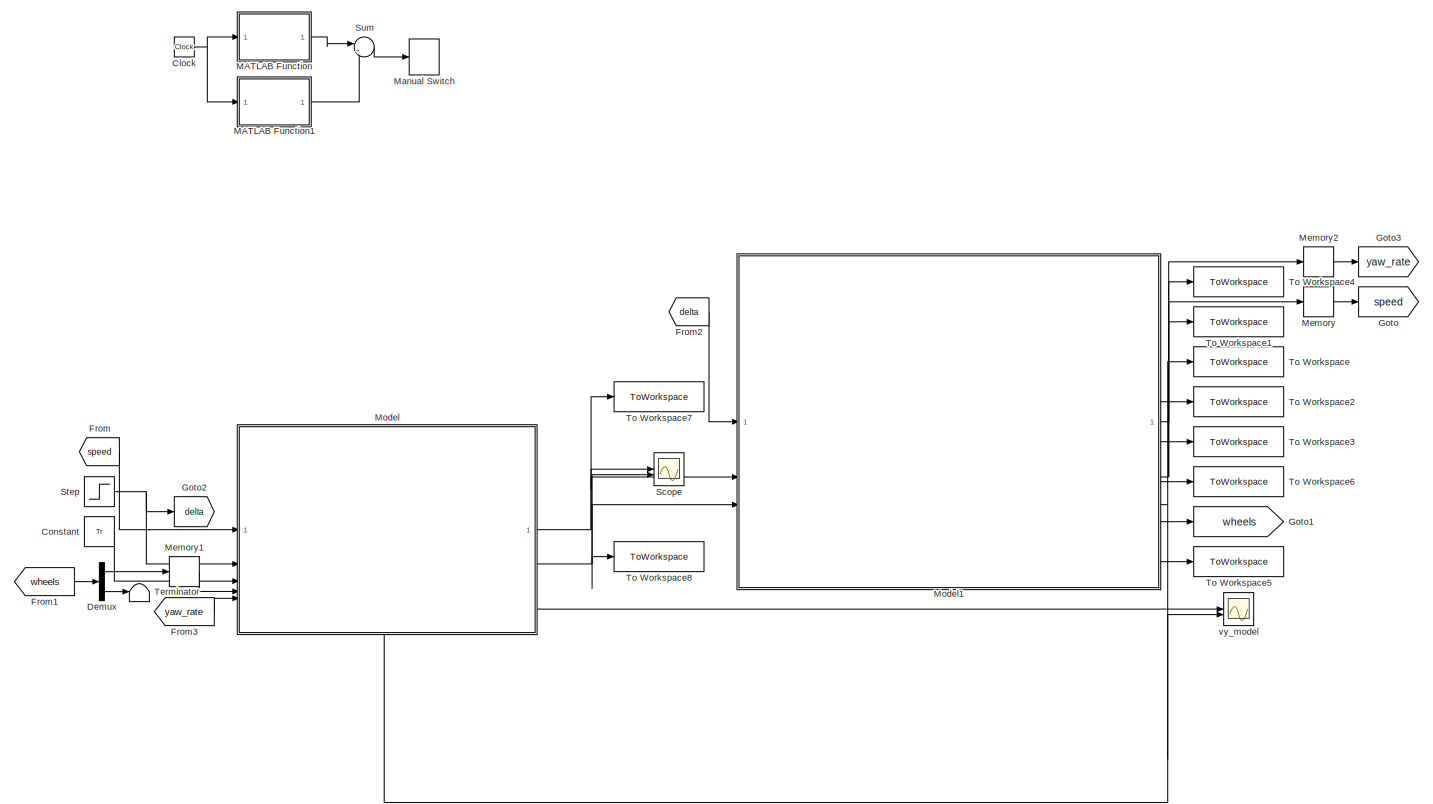
[diagram: root canvas - part 1/1, most of the canvas]
MODEL slx_322e5570ceea
KIND model
CONFIG AbsTol = auto
CONFIG EnableMultiTasking = off
CONFIG FixedStep = Ts
CONFIG MaxStep = auto
CONFIG MinStep = auto
CONFIG RelTol = 1e-3
CONFIG SampleTimeConstraint = Unconstrained
CONFIG SolverName = FixedStepAuto
CONFIG StartTime = 0.0
CONFIG StopTime = Tsim
BLOCK [Clock] Clock
  Commented = on
BLOCK [Constant] Constant
  Value = Tr
BLOCK [Demux] Demux
  Outputs = 2
BLOCK [From] From
  GotoTag = speed
BLOCK [From] From1
  GotoTag = wheels
BLOCK [From] From2
  GotoTag = delta
BLOCK [From] From3
  GotoTag = yaw_rate
BLOCK [Goto] Goto
  GotoTag = speed
BLOCK [Goto] Goto1
  GotoTag = wheels
BLOCK [Goto] Goto2
  GotoTag = delta
BLOCK [Goto] Goto3
  GotoTag = yaw_rate
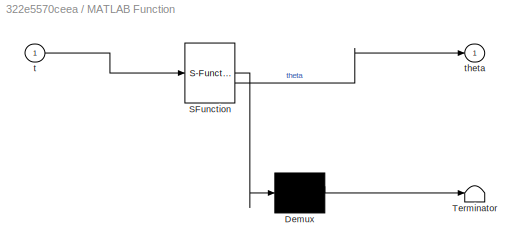
BLOCK [SubSystem] MATLAB Function
  Commented = on
  ErrorFcn = Stateflow.Translate.translate
  PermitHierarchicalResolution = ExplicitOnly
  SFBlockType = MATLAB Function
  TreatAsAtomicUnit = on
BLOCK [Demux] MATLAB Function/ Demux 
  Outputs = 1
BLOCK [S-Function] MATLAB Function/ SFunction 
  EnableBusSupport = on
  FunctionName = sf_sfun
  PortCounts = [1 2]
  SFcnIsStateOwnerBlock = off
  SFunctionDeploymentMode = off
  Tag = Stateflow S-Function 2
BLOCK [Terminator] MATLAB Function/ Terminator 
BLOCK [Inport] MATLAB Function/t
BLOCK [Outport] MATLAB Function/theta
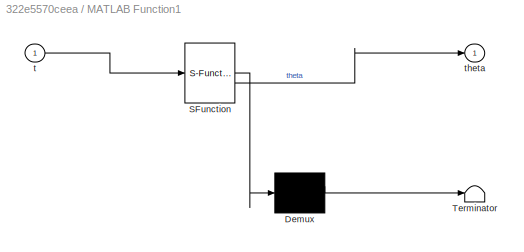
BLOCK [SubSystem] MATLAB Function1
  Commented = on
  ErrorFcn = Stateflow.Translate.translate
  PermitHierarchicalResolution = ExplicitOnly
  SFBlockType = MATLAB Function
  TreatAsAtomicUnit = on
BLOCK [Demux] MATLAB Function1/ Demux 
  Outputs = 1
BLOCK [S-Function] MATLAB Function1/ SFunction 
  EnableBusSupport = on
  FunctionName = sf_sfun
  PortCounts = [1 2]
  SFcnIsStateOwnerBlock = off
  SFunctionDeploymentMode = off
  Tag = Stateflow S-Function 1
BLOCK [Terminator] MATLAB Function1/ Terminator 
BLOCK [Inport] MATLAB Function1/t
BLOCK [Outport] MATLAB Function1/theta
BLOCK [ManualSwitch] Manual Switch
  Commented = on
  CurrentSetting = 0
BLOCK [Memory] Memory
  InitialCondition = v0
BLOCK [Memory] Memory1
  InitialCondition = [v0/Re v0/Re]
BLOCK [Memory] Memory2
BLOCK [ModelReference] Model
  ModelNameDialog = main_commande.slx
  ModelReferenceVersion = 1.45
  PortSchema = {"entries":[{"content":{"sides":[{"content":{"connectorIds":["In1","In2","In3","In4","In5"]},"type":"ConnectorPlacement.EquallySpacedRectSide","uuid":"422f371f-fcb3-40d1-9c6b-2b45da2fc934"},{"content":{"connectorIds":["Out1","Out2","Out3"],"side":"RIGHT"},"type":"ConnectorPlacement.EquallySpacedRectSide","uuid":"5fd8a801-8d83-4f2f-88b4-f69183b19fb5"},{"content":{"side":"TOP"},"type":"ConnectorPlac...<+409ch>
BLOCK [ModelReference] Model1
  ModelNameDialog = main.slx
  ModelReferenceVersion = 1.137
BLOCK [Scope] Scope
  Floating = off
  NumInputPorts = 2
  ScopeSpecificationString = Simulink.scopes.TimeScopeBlockCfg('CurrentConfiguration', extmgr.ConfigurationSet(extmgr.Configuration('Core','General UI',true),extmgr.Configuration('Core','Source UI',true),extmgr.Configuration('Sources','WiredSimulink',true),extmgr.Configuration('Visuals','Time Domain',true,'SerializedDisplays',{struct('MinYLimReal','-402.50082','MaxYLimReal','402.50082','YLabelReal','','MinYLimMag',' 0.00000',...<+1539ch>
BLOCK [Step] Step
  After = deltaF
  Before = delta0
  SampleTime = 0
  Time = t_sw
BLOCK [Sum] Sum
  Commented = on
  Inputs = |++
BLOCK [Terminator] Terminator
BLOCK [ToWorkspace] To Workspace
  FixptAsFi = on
  MaxDataPoints = inf
  NameLocation = top
  SampleTime = -1
  SaveFormat = Structure With Time
  VariableName = v_y
BLOCK [ToWorkspace] To Workspace1
  FixptAsFi = on
  MaxDataPoints = inf
  NameLocation = top
  SampleTime = -1
  SaveFormat = Structure With Time
  VariableName = v_x
BLOCK [ToWorkspace] To Workspace2
  FixptAsFi = on
  MaxDataPoints = inf
  NameLocation = top
  SampleTime = -1
  SaveFormat = Structure With Time
  VariableName = y
BLOCK [ToWorkspace] To Workspace3
  FixptAsFi = on
  MaxDataPoints = inf
  NameLocation = top
  SampleTime = -1
  SaveFormat = Structure With Time
  VariableName = x
BLOCK [ToWorkspace] To Workspace4
  FixptAsFi = on
  MaxDataPoints = inf
  NameLocation = top
  SampleTime = -1
  SaveFormat = Structure With Time
  VariableName = phi_dot
BLOCK [ToWorkspace] To Workspace5
  FixptAsFi = on
  MaxDataPoints = inf
  NameLocation = top
  SampleTime = -1
  SaveFormat = Structure With Time
  VariableName = phi
BLOCK [ToWorkspace] To Workspace6
  FixptAsFi = on
  MaxDataPoints = inf
  NameLocation = top
  SampleTime = -1
  SaveFormat = Structure With Time
  VariableName = beta
BLOCK [ToWorkspace] To Workspace7
  FixptAsFi = on
  MaxDataPoints = inf
  NameLocation = top
  SampleTime = -1
  SaveFormat = Structure With Time
  VariableName = T_RL
BLOCK [ToWorkspace] To Workspace8
  FixptAsFi = on
  MaxDataPoints = inf
  NameLocation = top
  SampleTime = -1
  SaveFormat = Structure With Time
  VariableName = T_RR
BLOCK [Scope] vy_model
  Floating = off
  NumInputPorts = 2
  ScopeSpecificationString = Simulink.scopes.TimeScopeBlockCfg('CurrentConfiguration', extmgr.ConfigurationSet(extmgr.Configuration('Core','General UI',true),extmgr.Configuration('Core','Source UI',true),extmgr.Configuration('Sources','WiredSimulink',true,'DataLoggingVariableName','ScopeData1'),extmgr.Configuration('Visuals','Time Domain',true,'SerializedDisplays',{struct('MinYLimReal','-1.16335','MaxYLimReal','10.43874','YLa...<+1540ch>
NET Clock:1 -> MATLAB Function1:1, MATLAB Function:1
LINE Constant:1 -> Model:3
LINE Demux:1 -> Memory1:1
LINE Demux:2 -> Terminator:1
LINE From1:1 -> Demux:1
LINE From2:1 -> Model1:1
LINE From3:1 -> Model:5
LINE From:1 -> Model:1
LINE MATLAB Function1:1 -> Sum:2
LINE MATLAB Function:1 -> Sum:1
LINE Memory1:1 -> Model:4
LINE Memory2:1 -> Goto3:1
LINE Memory:1 -> Goto:1
NET Model1:1 -> Memory2:1, To Workspace4:1
NET Model1:2 -> Memory:1, To Workspace1:1
NET Model1:3 -> Model:6, To Workspace:1, vy_model:2
LINE Model1:4 -> To Workspace2:1
LINE Model1:5 -> To Workspace3:1
LINE Model1:6 -> To Workspace6:1
LINE Model1:7 -> Goto1:1
LINE Model1:8 -> To Workspace5:1
NET Model:1 -> Model1:2, Scope:1, To Workspace7:1
NET Model:2 -> Model1:3, Scope:2, To Workspace8:1
LINE Model:3 -> vy_model:1
NET Step:1 -> Goto2:1, Model:2
LINE Sum:1 -> Manual Switch:1
note: NET lines group one-source signal fan-out (src -> all destinations, sorted); 1:1 wires keep LINE
CHART MATLAB Function states=1 transitions=1
  STATE_LABEL 'eML_blk_kernel()'
  STATE_LABEL "SCRIPT:\nfunction theta = angle_roue(t)\n    % Fonction pour modéliser l'angle de roue d'un double changement de voie\n    % Entrée :\n    %   t : vecteur ou scalaire temps\n    % Sortie :\n    %   theta : angle de roue correspondant à chaque t\n\n    theta = zeros(size(t));  % Initialisation\n\n    % Intervalle actif : [1,4]\n    idx = (t > 1) & (t < 4);\n    \n    % Fonction sinus entre 2 et 5 (période compl...<+70ch>"
CHART MATLAB Function1 states=1 transitions=1
  STATE_LABEL 'eML_blk_kernel()'
  STATE_LABEL "SCRIPT:\nfunction theta = angle_roue(t)\n    % Fonction pour modéliser l'angle de roue d'un double changement de voie\n    % Entrée :\n    %   t : vecteur ou scalaire temps\n    % Sortie :\n    %   theta : angle de roue correspondant à chaque t\n\n    theta = zeros(size(t));  % Initialisation\n\n    % Intervalle actif : [5,8]\n    idx = (t > 6) & (t < 9);\n    \n    % Fonction sinus entre 2 et 5 (période compl...<+71ch>"
CHART  states=0 transitions=0
CHART  states=0 transitions=0
